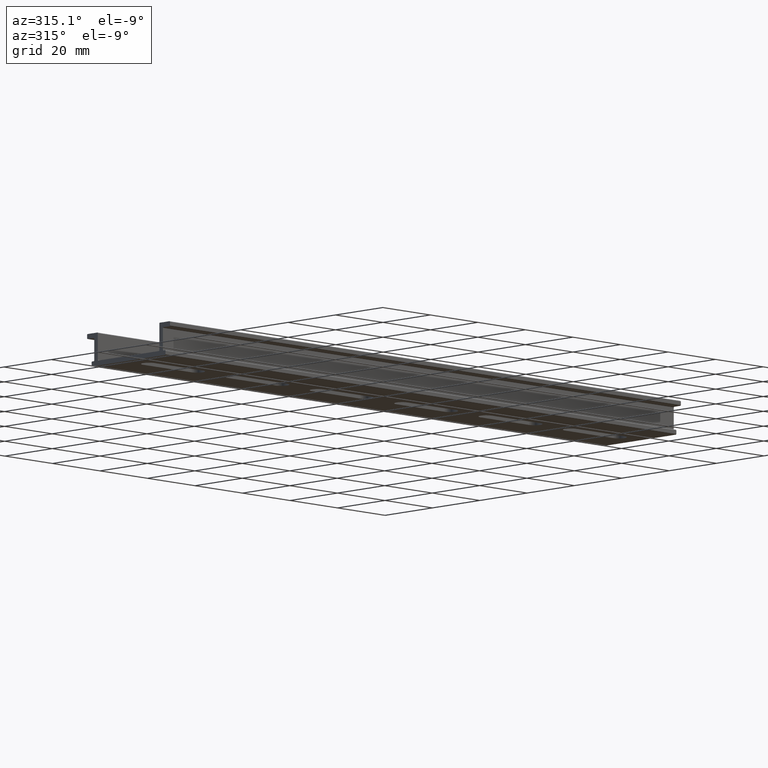
[diagram: clean part render]
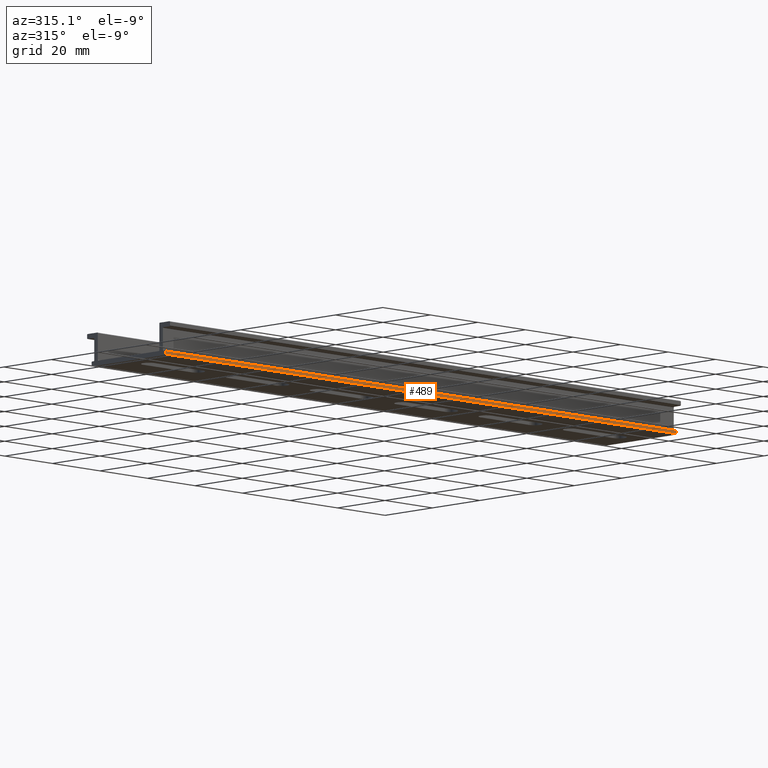
[diagram: same view with one face highlighted and labeled with its STEP entity id]
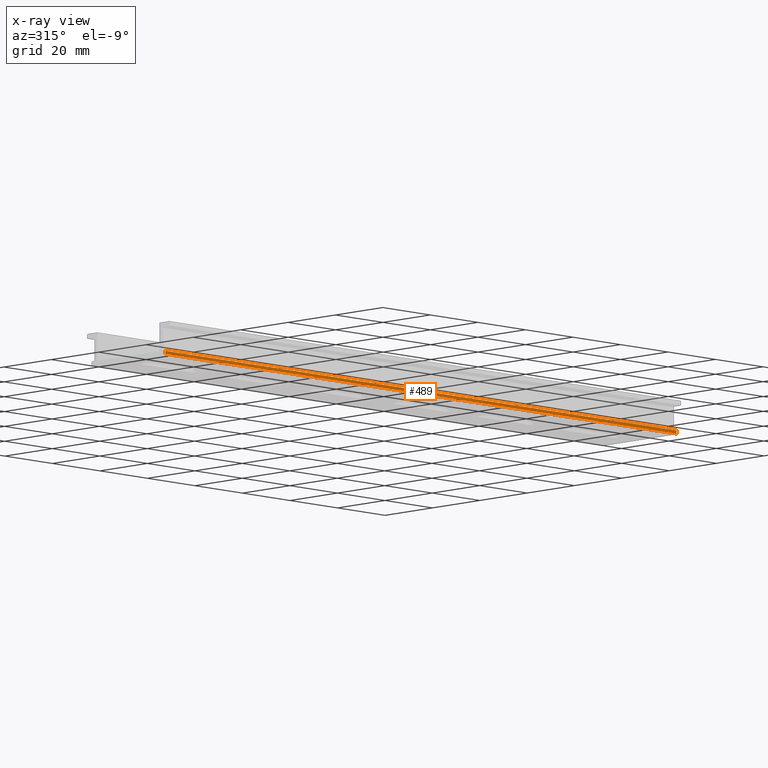
[diagram: x-ray of the same camera — body ghosted, the highlighted face saturated]
A machine part, auxiliary view. The second image highlights one B-rep face of the part: STEP entity #489.
The next image is the same camera in x-ray: the body ghosted, the highlighted face saturated — about 0% of this face is hidden behind the body in this view.
In plain terms, the highlighted planar face has unit normal (-0, 1, 0).
Its self-contained STEP definition (entity closure, byte-faithful):
#2 = LINE ( 'NONE', #302, #1944 ) ;
#84 = EDGE_CURVE ( 'NONE', #99, #868, #2, .T. ) ;
#99 = VERTEX_POINT ( 'NONE', #1862 ) ;
#104 = DIRECTION ( 'NONE',  ( 0.000000000000000000, 0.000000000000000000, -1.000000000000000000 ) ) ;
#107 = VERTEX_POINT ( 'NONE', #607 ) ;
#170 = LINE ( 'NONE', #1277, #467 ) ;
#199 = ORIENTED_EDGE ( 'NONE', *, *, #1355, .F. ) ;
#297 = CARTESIAN_POINT ( 'NONE',  ( 107.5000000000000000, -15.59999999999996945, -4.731957068239349695 ) ) ;
#302 = CARTESIAN_POINT ( 'NONE',  ( -107.5000000000000000, -15.59999999999999964, -3.768042931760634762 ) ) ;
#316 = CARTESIAN_POINT ( 'NONE',  ( 107.5000000000000000, -15.59999999999996945, -4.731957068239349695 ) ) ;
#422 = CARTESIAN_POINT ( 'NONE',  ( -107.5000000000000000, -15.59999999999996945, -4.731957068239349695 ) ) ;
#434 = DIRECTION ( 'NONE',  ( -0.000000000000000000, 1.000000000000000000, 0.000000000000000000 ) ) ;
#467 = VECTOR ( 'NONE', #792, 1000.000000000000000 ) ;
#489 = ADVANCED_FACE ( 'NONE', ( #1246 ), #1519, .F. ) ;
#607 = CARTESIAN_POINT ( 'NONE',  ( 107.5000000000000000, -15.59999999999999964, -3.768042931760634762 ) ) ;
#632 = VECTOR ( 'NONE', #1284, 1000.000000000000000 ) ;
#770 = VERTEX_POINT ( 'NONE', #297 ) ;
#792 = DIRECTION ( 'NONE',  ( -1.000000000000000000, -0.000000000000000000, -0.000000000000000000 ) ) ;
#826 = AXIS2_PLACEMENT_3D ( 'NONE', #1206, #434, #2002 ) ;
#868 = VERTEX_POINT ( 'NONE', #422 ) ;
#968 = EDGE_CURVE ( 'NONE', #107, #99, #170, .T. ) ;
#987 = ORIENTED_EDGE ( 'NONE', *, *, #84, .T. ) ;
#1063 = ORIENTED_EDGE ( 'NONE', *, *, #968, .T. ) ;
#1071 = LINE ( 'NONE', #1223, #1207 ) ;
#1206 = CARTESIAN_POINT ( 'NONE',  ( 107.5000000000000000, -15.59999999999999964, -3.768042931760634762 ) ) ;
#1207 = VECTOR ( 'NONE', #104, 1000.000000000000000 ) ;
#1223 = CARTESIAN_POINT ( 'NONE',  ( 107.5000000000000000, -15.59999999999999964, -3.768042931760634762 ) ) ;
#1246 = FACE_OUTER_BOUND ( 'NONE', #1961, .T. ) ;
#1277 = CARTESIAN_POINT ( 'NONE',  ( 107.5000000000000000, -15.59999999999999964, -3.768042931760634762 ) ) ;
#1284 = DIRECTION ( 'NONE',  ( -1.000000000000000000, -0.000000000000000000, -0.000000000000000000 ) ) ;
#1355 = EDGE_CURVE ( 'NONE', #770, #868, #1756, .T. ) ;
#1440 = DIRECTION ( 'NONE',  ( 0.000000000000000000, 0.000000000000000000, -1.000000000000000000 ) ) ;
#1481 = EDGE_CURVE ( 'NONE', #107, #770, #1071, .T. ) ;
#1519 = PLANE ( 'NONE',  #826 ) ;
#1756 = LINE ( 'NONE', #316, #632 ) ;
#1831 = ORIENTED_EDGE ( 'NONE', *, *, #1481, .F. ) ;
#1862 = CARTESIAN_POINT ( 'NONE',  ( -107.5000000000000000, -15.59999999999999964, -3.768042931760634762 ) ) ;
#1944 = VECTOR ( 'NONE', #1440, 1000.000000000000000 ) ;
#1961 = EDGE_LOOP ( 'NONE', ( #987, #199, #1831, #1063 ) ) ;
#2002 = DIRECTION ( 'NONE',  ( 0.000000000000000000, -0.000000000000000000, 1.000000000000000000 ) ) ;